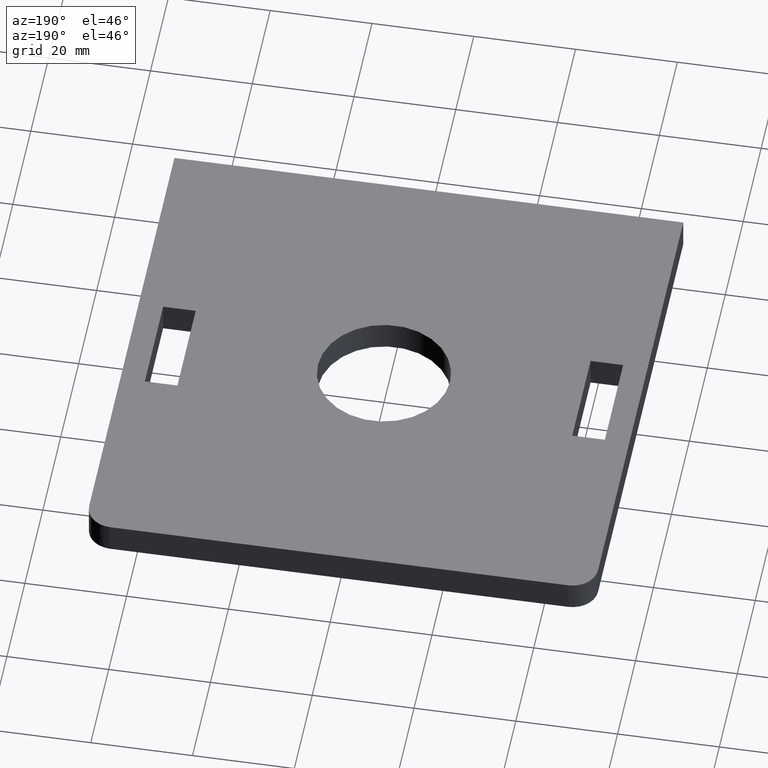
[diagram: clean part render]
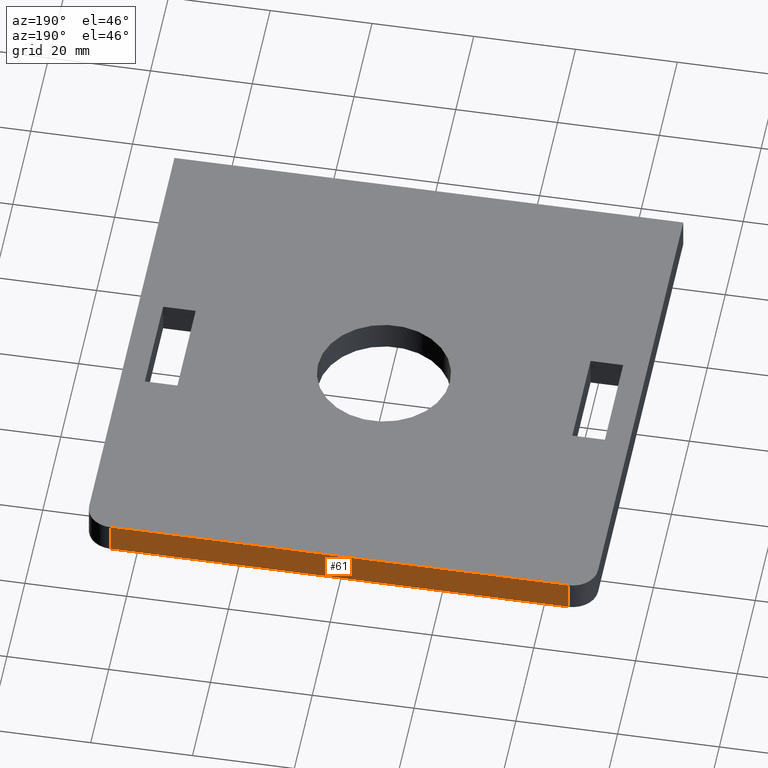
[diagram: same view with one face highlighted and labeled with its STEP entity id]
A machine part, auxiliary view. The second image highlights one B-rep face of the part: STEP entity #61.
In plain terms, the highlighted planar face has unit normal (0, 1, -0).
Its self-contained STEP definition (entity closure, byte-faithful):
#5 = LINE ( 'NONE', #496, #569 ) ;
#28 = DIRECTION ( 'NONE',  ( -1.000000000000000000, -1.805559322863033398E-34, -1.540743955509788682E-33 ) ) ;
#32 = DIRECTION ( 'NONE',  ( 1.805559322863035323E-34, 1.000000000000000000, -0.000000000000000000 ) ) ;
#33 = VECTOR ( 'NONE', #319, 1000.000000000000000 ) ;
#56 = LINE ( 'NONE', #304, #33 ) ;
#57 = ORIENTED_EDGE ( 'NONE', *, *, #577, .T. ) ;
#61 = ADVANCED_FACE ( 'NONE', ( #382 ), #434, .T. ) ;
#153 = VERTEX_POINT ( 'NONE', #329 ) ;
#200 = VERTEX_POINT ( 'NONE', #606 ) ;
#211 = VERTEX_POINT ( 'NONE', #290 ) ;
#212 = VECTOR ( 'NONE', #28, 1000.000000000000000 ) ;
#245 = DIRECTION ( 'NONE',  ( 0.000000000000000000, 0.000000000000000000, 1.000000000000000000 ) ) ;
#274 = CARTESIAN_POINT ( 'NONE',  ( -50.00000000000027001, 49.99999999999982236, -6.000000000001226574 ) ) ;
#290 = CARTESIAN_POINT ( 'NONE',  ( -44.99999999999987210, 50.00000000000059686, -3.330669073875469621E-13 ) ) ;
#302 = CARTESIAN_POINT ( 'NONE',  ( -44.99999999999976552, 50.00000000000071054, -6.000000000001004530 ) ) ;
#304 = CARTESIAN_POINT ( 'NONE',  ( -49.99999999999970868, 49.99999999999993605, -1.110223024625156540E-13 ) ) ;
#316 = EDGE_CURVE ( 'NONE', #618, #211, #556, .T. ) ;
#319 = DIRECTION ( 'NONE',  ( -1.000000000000000000, -1.805559322863033398E-34, -1.540743955509788682E-33 ) ) ;
#324 = LINE ( 'NONE', #426, #212 ) ;
#326 = EDGE_CURVE ( 'NONE', #153, #211, #56, .T. ) ;
#329 = CARTESIAN_POINT ( 'NONE',  ( 45.00000000000093081, 49.99999999999970868, -3.330669073875469621E-13 ) ) ;
#332 = DIRECTION ( 'NONE',  ( 0.000000000000000000, 0.000000000000000000, 1.000000000000000000 ) ) ;
#372 = CARTESIAN_POINT ( 'NONE',  ( -44.99999999999976552, 50.00000000000071054, -6.000000000001004530 ) ) ;
#377 = VECTOR ( 'NONE', #245, 1000.000000000000000 ) ;
#382 = FACE_OUTER_BOUND ( 'NONE', #456, .T. ) ;
#426 = CARTESIAN_POINT ( 'NONE',  ( -50.00000000000027001, 49.99999999999982236, -6.000000000001226574 ) ) ;
#434 = PLANE ( 'NONE',  #450 ) ;
#450 = AXIS2_PLACEMENT_3D ( 'NONE', #274, #32, #332 ) ;
#456 = EDGE_LOOP ( 'NONE', ( #475, #613, #57, #570 ) ) ;
#475 = ORIENTED_EDGE ( 'NONE', *, *, #326, .F. ) ;
#496 = CARTESIAN_POINT ( 'NONE',  ( 45.00000000000023448, 50.00000000000059686, -6.000000000000671463 ) ) ;
#556 = LINE ( 'NONE', #302, #377 ) ;
#569 = VECTOR ( 'NONE', #605, 1000.000000000000000 ) ;
#570 = ORIENTED_EDGE ( 'NONE', *, *, #316, .T. ) ;
#577 = EDGE_CURVE ( 'NONE', #200, #618, #324, .T. ) ;
#605 = DIRECTION ( 'NONE',  ( -0.000000000000000000, -0.000000000000000000, -1.000000000000000000 ) ) ;
#606 = CARTESIAN_POINT ( 'NONE',  ( 45.00000000000023448, 50.00000000000059686, -6.000000000000671463 ) ) ;
#613 = ORIENTED_EDGE ( 'NONE', *, *, #642, .T. ) ;
#618 = VERTEX_POINT ( 'NONE', #372 ) ;
#642 = EDGE_CURVE ( 'NONE', #153, #200, #5, .T. ) ;